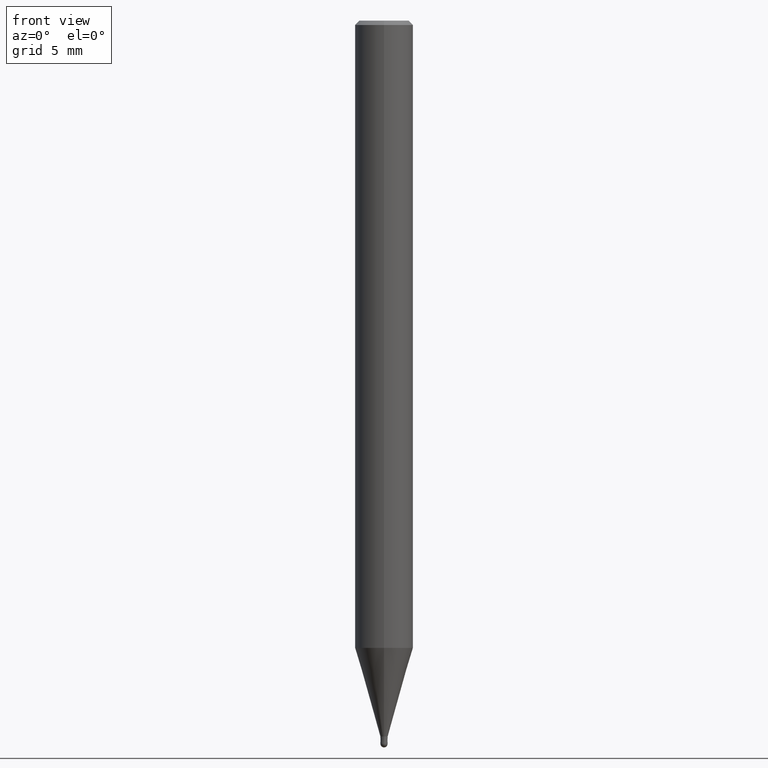
[diagram: clean part render]
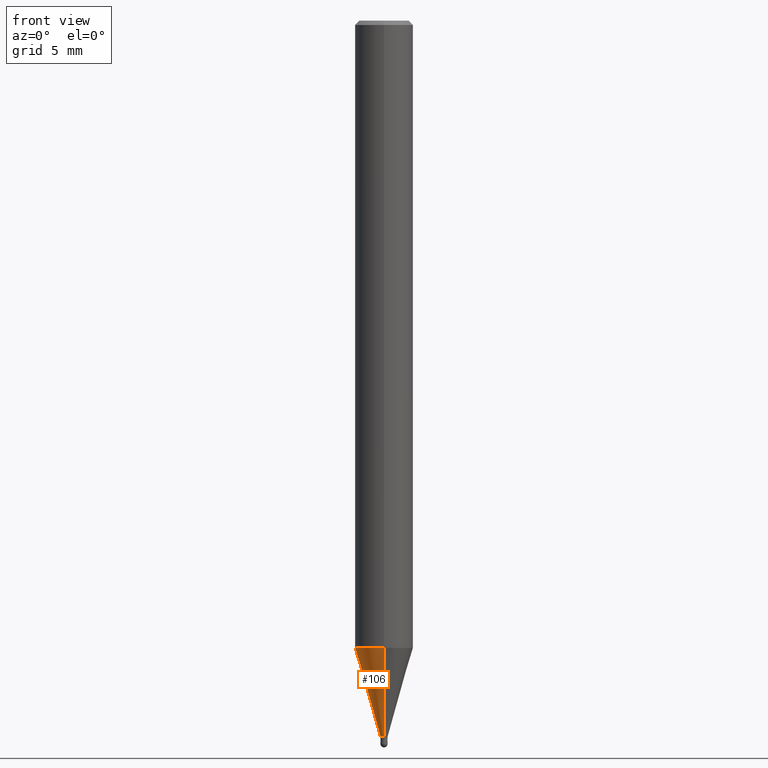
[diagram: same view with one face highlighted and labeled with its STEP entity id]
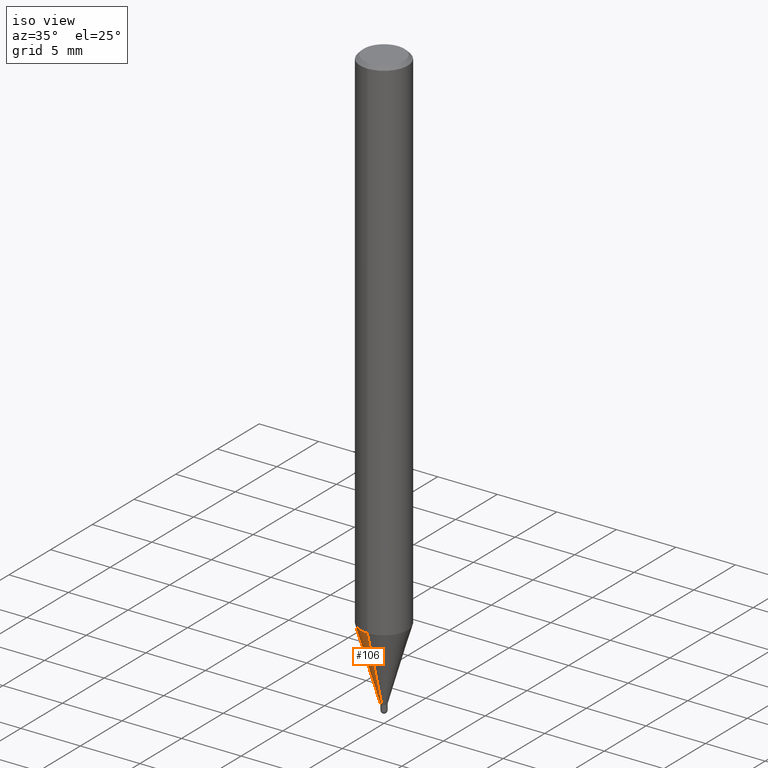
[diagram: same view with one face highlighted and labeled with its STEP entity id]
A machine part, front view. The second image highlights one B-rep face of the part: STEP entity #106.
A second angle (iso view) of the same face is appended — the face is thin or edge-on in the first view.
In plain terms, the highlighted conical surface has half-angle 16 deg.
Its self-contained STEP definition (entity closure, byte-faithful):
#102=EDGE_CURVE('',#166,#184,#229,.T.);
#106=ADVANCED_FACE('',(#234),#235,.T.);
#138=EDGE_CURVE('',#170,#160,#272,.T.);
#160=VERTEX_POINT('',#297);
#166=VERTEX_POINT('',#304);
#170=VERTEX_POINT('',#308);
#182=EDGE_CURVE('',#184,#160,#322,.T.);
#184=VERTEX_POINT('',#324);
#188=EDGE_CURVE('',#170,#166,#328,.T.);
#229=CIRCLE('',#368,1.99995);
#234=FACE_OUTER_BOUND('',#373,.T.);
#235=CONICAL_SURFACE('',#374,1.12495,0.27925160696619);
#272=CIRCLE('',#421,0.24995);
#297=CARTESIAN_POINT('',(0.0,0.24995,-49.25));
#304=CARTESIAN_POINT('',(2.44915147732706E-016,-1.99995,-43.147));
#308=CARTESIAN_POINT('',(3.06090358137903E-017,-0.24995,-49.25));
#322=LINE('',#478,#479);
#324=CARTESIAN_POINT('',(0.0,1.99995,-43.147));
#328=LINE('',#486,#487);
#368=AXIS2_PLACEMENT_3D('',#515,#516,#517);
#373=EDGE_LOOP('',(#527,#528,#529,#530));
#374=AXIS2_PLACEMENT_3D('',#531,#532,#533);
#421=AXIS2_PLACEMENT_3D('',#581,#582,#583);
#478=CARTESIAN_POINT('',(-1.37762091773248E-016,1.12495,-46.1985));
#479=VECTOR('',#647,1.0);
#486=CARTESIAN_POINT('',(1.37762091773248E-016,-1.12495,-46.1985));
#487=VECTOR('',#648,1.0);
#515=CARTESIAN_POINT('',(0.0,0.0,-43.147));
#516=DIRECTION('',(0.0,0.0,-1.0));
#517=DIRECTION('',(0.0,1.0,0.0));
#527=ORIENTED_EDGE('',*,*,#182,.T.);
#528=ORIENTED_EDGE('',*,*,#138,.F.);
#529=ORIENTED_EDGE('',*,*,#188,.T.);
#530=ORIENTED_EDGE('',*,*,#102,.T.);
#531=CARTESIAN_POINT('',(0.0,0.0,-46.1985));
#532=DIRECTION('',(-0.0,-0.0,1.0));
#533=DIRECTION('',(0.0,1.0,0.0));
#581=CARTESIAN_POINT('',(0.0,0.0,-49.25));
#582=DIRECTION('',(0.0,0.0,-1.0));
#583=DIRECTION('',(0.0,1.0,0.0));
#647=DIRECTION('',(3.37545993768291E-017,-0.275636324043808,-0.961261991793921));
#648=DIRECTION('',(3.37545993768291E-017,-0.275636324043808,0.961261991793921));